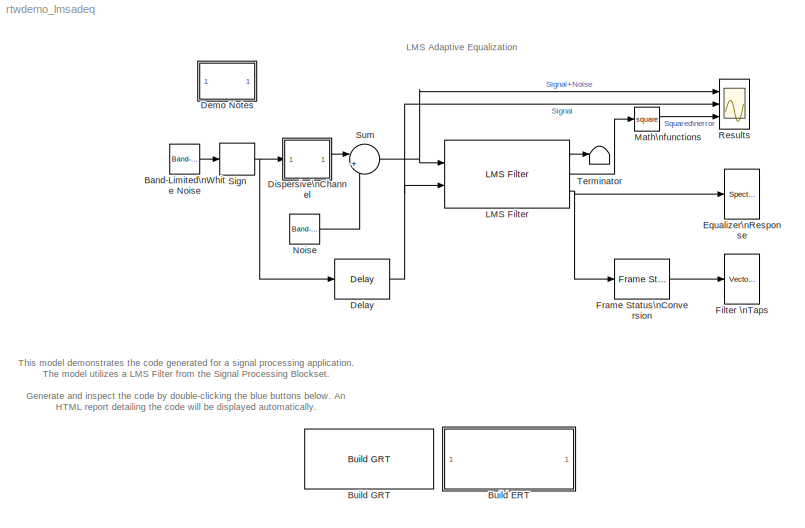
MODEL rtwdemo_lmsadeq
KIND model
BLOCK [Reference] Band-Limited\nWhite Noise  REF=simulink/Sources/Band-Limited\nWhite Noise
  Cov = 1e-5
  Ports = [0, 1]
  ShowPortLabels = on
  SourceBlock = simulink/Sources/Band-Limited\nWhite Noise
  SourceType = Band-Limited White Noise.
  Ts = 1e-5
  VectorParams1D = on
  seed = 12345
BLOCK [SubSystem] Build ERT
  AncestorBlock = rtwdemowidgets/Build ERT
  MaskDescription = Enter the attributes of the configuration set that you want preserved.  Otherwise, the default configuration script will override your current settings.
  MaskDisplay = disp(['Generate Code Using\\n',...\n	  'Real-Time Workshop\\n',...\n	  'Embedded Coder\\n'...\n	  '(double-click)'])
  MaskEnableString = on
  MaskIconFrame = on
  MaskIconOpaque = on
  MaskIconRotate = none
  MaskIconUnits = autoscale
  MaskPromptString = List of attributes to preserve (cell of strings):
  MaskStyleString = edit
  MaskToolTipString = on
  MaskTunableValueString = off
  MaskValueString = {}
  MaskVariables = attrib_overrides=&1;
  MaskVisibilityString = on
  MinAlgLoopOccurrences = off
  OpenFcn = model=bdroot;                                    \noverrides=get_param(gcb,'attrib_overrides');     \ntry                                              \n  rtwconfiguredemo(model,'noop',false,overrides);\n  cs = getActiveConfigSet(model);                \n  set_param(cs,'SupportComplex','on');           \n  rtwbuilddemomodel(model);                      \ncatch                                      ...<+110ch>
  Ports = []
  PropExecContextAcrossSSBoundary = on
  RTWSystemCode = Auto
  TreatAsAtomicUnit = off
BLOCK [Reference] Build GRT  REF=rtwdemowidgets/Build GRT
  Ports = []
  ShowPortLabels = on
  SourceBlock = rtwdemowidgets/Build GRT
  attrib_overrides = {}
BLOCK [Reference] Delay  REF=dspsigops/Delay
  Ports = [1, 1]
  SourceBlock = dspsigops/Delay
  SourceType = Delay
  delay = 6
  dif_ic_for_ch = off
  dif_ic_for_dly = off
  dly_unit = Samples
  ic = 0
  ic_detail = off
  reset_popup = None
BLOCK [SubSystem] Demo Notes
  MaskDisplay = disp('Demo\\nNotes')
  MaskIconFrame = on
  MaskIconOpaque = on
  MaskIconRotate = none
  MaskIconUnits = autoscale
  MinAlgLoopOccurrences = off
  Ports = []
  PropExecContextAcrossSSBoundary = on
  RTWSystemCode = Auto
  TreatAsAtomicUnit = off
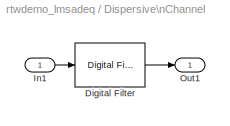
BLOCK [SubSystem] Dispersive\nChannel
  MaskDescription = Dispersive channel filter.
  MaskDisplay = plot(h)
  MaskEnableString = on
  MaskHelp = Dispersive channel filter
  MaskIconFrame = on
  MaskIconOpaque = on
  MaskIconRotate = none
  MaskIconUnits = autoscale
  MaskInitialization = b=.5*(1+cos(2*pi./d.*[-1 0 1])); h=log(abs(freqz(b,1,64)));
  MaskPromptString = Dispersion:
  MaskStyleString = edit
  MaskToolTipString = on
  MaskTunableValueString = on
  MaskType = Simple Dispersive Channel
  MaskValueString = 3.5
  MaskVariables = d=@1;
  MaskVisibilityString = on
  MinAlgLoopOccurrences = off
  Ports = [1, 1]
  PropExecContextAcrossSSBoundary = on
  RTWSystemCode = Auto
  TreatAsAtomicUnit = off
BLOCK [Reference] Dispersive\nChannel/Digital Filter  REF=dsparch4/Digital Filter
  AllPoleFiltStruct = Direct form
  BiQuadCoeffs = [1 0.3 0.4 1 0.1 0.2]
  CoeffSource = Specify via dialog
  DenCoeffs = [1 0.1]
  DialogController = dspDDGCreate
  DialogControllerArgs = DataTag0
  FIRFiltStruct = Direct form
  FiltPerSampPopup = One filter per frame
  IC = 0
  ICden = 0
  ICnum = 0
  IIRFiltStruct = Direct form II transposed
  LatticeCoeffs = [0.2 0.4]
  NumCoeffs = b
  Ports = [1, 1]
  ScaleValues = 1
  SourceBlock = dsparch4/Digital Filter
  SourceType = Digital Filter
  TypePopup = FIR (all zeros)
  accumFracLength = 30
  accumMode = Same as product output
  accumWordLength = 40
  additionalParams = off
  allowOverrides = on
  denIgnore = on
  firstCoeffFracLength = 15
  firstCoeffMode = Same as input
  firstCoeffWordLength = 16
  memoryFracLength = 14
  memoryMode = Same as input
  memoryWordLength = 16
  outputFracLength = 15
  outputMode = Same as input
  outputWordLength = 16
  overflowMode = off
  prodOutputFracLength = 30
  prodOutputMode = Same as input
  prodOutputWordLength = 32
  roundingMode = Floor
  scaleValueFracLength = 14
  secondCoeffFracLength = 15
  secondCoeffMode = Same as numerator
  secondCoeffWordLength = 16
  showAcc = off
  showCoeff = off
  showMem = off
  showMpy = off
  showOut = off
  stageIOMode = Same as input
  stageIOWordLength = 16
  stageInFracLength = 15
  stageOutFracLength = 15
  tapSumFracLength = 30
  tapSumMode = Same as input
  tapSumWordLength = 32
  thirdCoeffFracLength = 15
  thirdCoeffMode = Same as input
  thirdCoeffWordLength = 16
BLOCK [Inport] Dispersive\nChannel/In1
  IconDisplay = Port number
  LatchInput = off
  Port = 1
BLOCK [Outport] Dispersive\nChannel/Out1
  BusOutputAsStruct = off
  IconDisplay = Port number
BLOCK [Reference] Equalizer\nResponse  REF=dspsnks4/Spectrum\nScope
  AxisGrid = on
  AxisLegend = off
  AxisProperties = off
  AxisZoom = off
  BufferSize = 128
  DisplayProperties = off
  Domain = Frequency
  FFTlength = 128
  FigPos = [29 124 450 360]
  FrameNumber = off
  HorizSpan = 1
  InheritXIncr = on
  LineProperties = off
  Memory = off
  OpenScopeAtSimStart = on
  OpenScopeImmediately = off
  Overlap = 64
  Ports = [1]
  ScopeProperties = on
  ShowPortLabels = off
  SourceBlock = dspsnks4/Spectrum\nScope
  SourceType = Spectrum Scope
  UseBuffer = off
  XIncr = 1
  XLabel = Samples
  XRange = [0...Fs/2]
  XUnits = Hertz
  YLabel = Magnitude, dB
  YMax = 8
  YMin = -12
  YUnits = dB
  inpFftLenInherit = on
  numAvg = 2
BLOCK [Reference] Filter \nTaps  REF=dspsnks4/Vector\nScope
  AxisGrid = on
  AxisLegend = off
  AxisProperties = off
  AxisZoom = off
  DisplayProperties = off
  Domain = User-defined
  FigPos = [491 123 450 360]
  FrameNumber = off
  HorizSpan = 1
  InheritXIncr = off
  LineMarkers = .
  LineProperties = off
  Memory = off
  OpenScopeAtSimStart = on
  OpenScopeImmediately = off
  Ports = [1]
  ScopeProperties = on
  ShowPortLabels = off
  SourceBlock = dspsnks4/Vector\nScope
  SourceType = Vector Scope
  XIncr = 1
  XLabel = Samples
  XRange = [0...Fs/2]
  XUnits = Hertz
  YLabel = Equalizer Coefficients
  YMax = 2
  YMin = -1
  YUnits = dB
BLOCK [Reference] Frame Status\nConversion  REF=dspsigattribs/Frame Status\nConversion
  Ports = [1, 1]
  ShowPortLabels = off
  SourceBlock = dspsigattribs/Frame Status\nConversion
  SourceType = Frame Status Conversion
  growRefPort = off
  outframe = Frame-based
BLOCK [Reference] LMS Filter  REF=dspadpt3/LMS Filter
  Adapt = off
  Algo = Normalized LMS
  DialogController = dspDDGCreate
  DialogControllerArgs = DataTag1
  L = 11
  Ports = [2, 3]
  ShowPortLabels = on
  SourceBlock = dspadpt3/LMS Filter
  SourceType = LMS Filter
  accum2FracLength = 20
  accum2Mode = User-defined
  accumFracLength = 20
  accumMode = Same as first input
  accumWordLength = 32
  addnparflag = off
  firstCoeffFracLength = 15
  firstCoeffMode = Same word length as first input
  firstCoeffWordLength = 16
  ic = 0
  leakage = 1.0
  memoryFracLength = 15
  memoryMode = Same as first input
  memoryWordLength = 16
  mu = 0.5
  overflowMode = off
  prodOutput2FracLength = 20
  prodOutput2Mode = User-defined
  prodOutput3FracLength = 20
  prodOutput3Mode = User-defined
  prodOutput4FracLength = 20
  prodOutput4Mode = User-defined
  prodOutputFracLength = 20
  prodOutputMode = Same as first input
  prodOutputWordLength = 32
  quotientFracLength = 20
  quotientMode = User-defined
  resetflag = None
  roundingMode = Floor
  secondCoeffFracLength = 15
  secondCoeffMode = User-defined
  secondCoeffWordLength = 2
  stepflag = Dialog
  weights = on
BLOCK [Math] Math\nfunctions
  Operator = square
  Ports = [1, 1]
BLOCK [Reference] Noise  REF=simulink/Sources/Band-Limited\nWhite Noise
  Cov = .002e-5
  Ports = [0, 1]
  ShowPortLabels = on
  SourceBlock = simulink/Sources/Band-Limited\nWhite Noise
  SourceType = Band-Limited White Noise.
  Ts = 1e-5
  VectorParams1D = on
  seed = [23341]
BLOCK [Scope] Results
  DataFormat = Array
  NumInputPorts = 3
  Ports = [3]
  SaveName = ScopeData1
  TimeRange = 0.005
  YMax = 2~2~1
  YMin = -2~0~0
BLOCK [Signum] Sign
BLOCK [Sum] Sum
  IconShape = round
  Inputs = |++
  Ports = [2, 1]
BLOCK [Terminator] Terminator
ANNOTATION (root): LMS Adaptive Equalization
ANNOTATION (root): This model demonstrates the code generated for a signal processing application.\nThe model utilizes a LMS Filter from the Signal Processing Blockset.\n\nGenerate and inspect the code by double-clicking the blue buttons below. An\nHTML report detailing the code will be displayed automatically.
ANNOTATION Demo Notes: Adaptive Channel Equalization\n\nThis demonstrates the ability of the LMS algorithm\nto adaptively compute the estimate of an FIR\nequalization filter.\n\nFor more information on the LMS adaptive filter\nor channel equalization, see\nS. Haykin, \"Adaptive Filter Theory\",\n3rd Ed., Prentice Hall, 1996.\n
LINE Band-Limited\nWhite Noise:1 -> Sign:1
NET Delay:1 -> LMS Filter:2, Results:2
LINE Dispersive\nChannel/Digital Filter:1 -> Dispersive\nChannel/Out1:1
LINE Dispersive\nChannel/In1:1 -> Dispersive\nChannel/Digital Filter:1
LINE Dispersive\nChannel:1 -> Sum:1
LINE Frame Status\nConversion:1 -> Filter \nTaps:1
LINE LMS Filter:1 -> Terminator:1
LINE LMS Filter:2 -> Math\nfunctions:1
NET LMS Filter:3 -> Equalizer\nResponse:1, Frame Status\nConversion:1
LINE Math\nfunctions:1 -> Results:3
LINE Noise:1 -> Sum:2
NET Sign:1 -> Delay:1, Dispersive\nChannel:1
NET Sum:1 -> LMS Filter:1, Results:1
note: NET lines group one-source signal fan-out (src -> all destinations, sorted); 1:1 wires keep LINE
